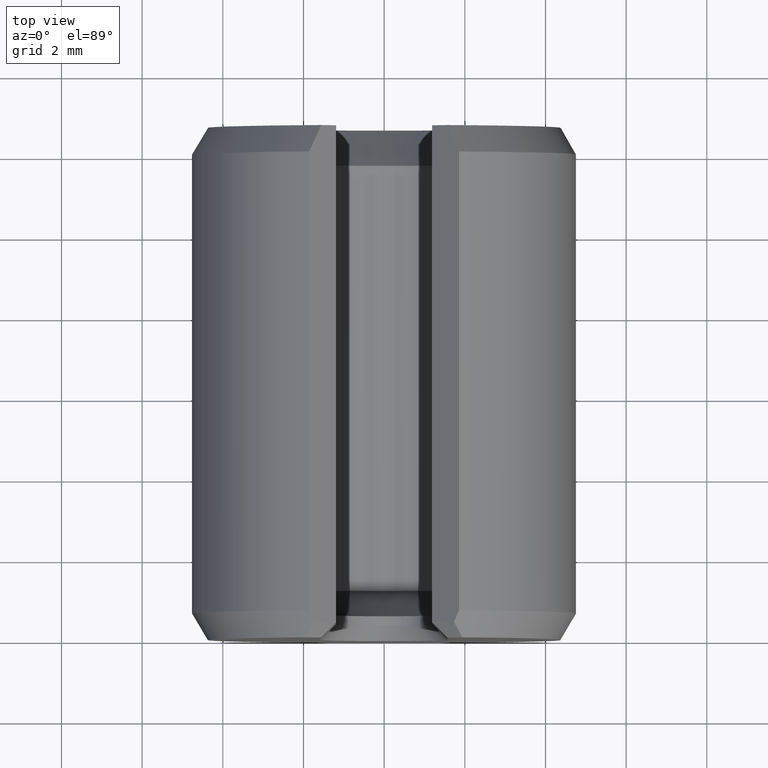
[diagram: clean part render]
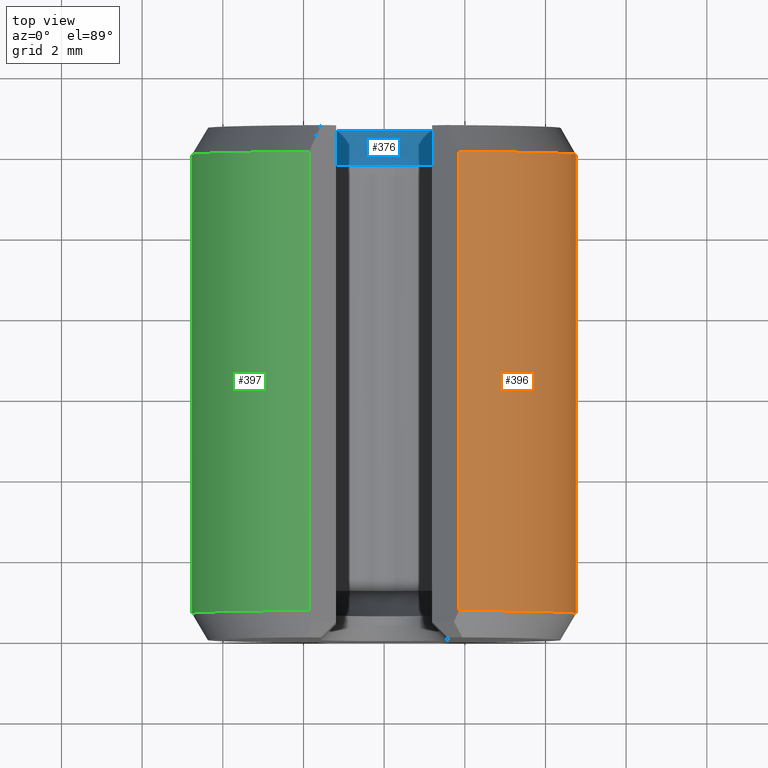
[diagram: same view with three faces highlighted in distinct colors, each labeled with its STEP entity id]
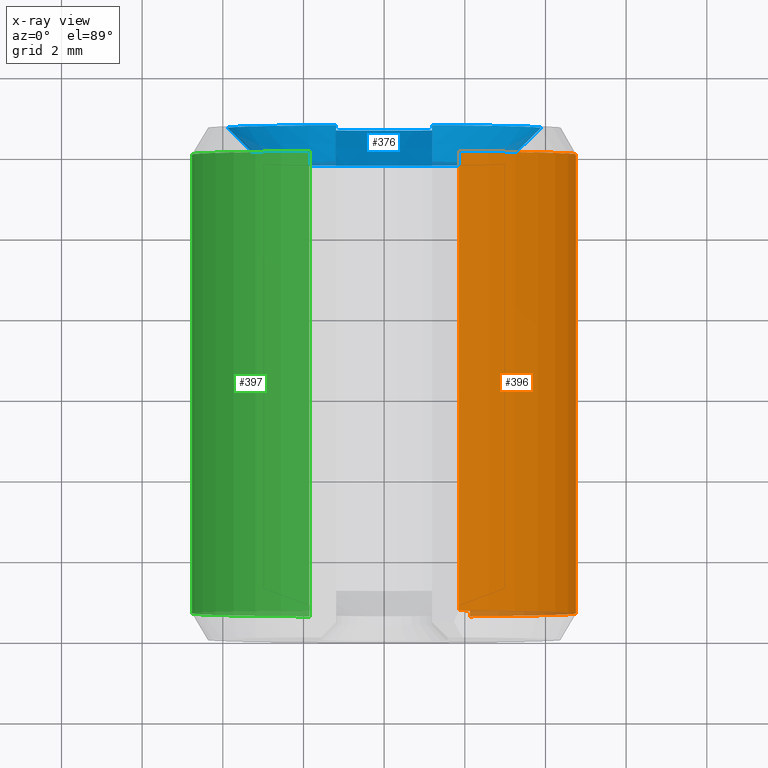
[diagram: x-ray of the same camera — body ghosted, the three highlighted faces saturated]
A machine part, top view with three faces highlighted in distinct colors.
The next image is the same camera in x-ray (body ghosted, the three faces saturated) — at least one of them is partly hidden behind the body in this view.
Their STEP definitions:

[orange] entity #396 — the highlighted cylindrical surface (partial cylindrical patch) has radius 4.7625 mm, axis along (-0, -1, -0).
#130 = CYLINDRICAL_SURFACE ( 'NONE', #511, 0.1875000000000000300 ) ;
#139 = FACE_OUTER_BOUND ( 'NONE', #709, .T. ) ;
#198 = DIRECTION ( 'NONE',  ( -0.0000000000000000000, -1.000000000000000000, -0.0000000000000000000 ) ) ;
#199 = CARTESIAN_POINT ( 'NONE',  ( 0.0000000000000000000, 0.5000000000000000000, 0.0000000000000000000 ) ) ;
#200 = DIRECTION ( 'NONE',  ( 0.0000000000000000000, 0.0000000000000000000, -1.000000000000000000 ) ) ;
#228 = DIRECTION ( 'NONE',  ( -0.0000000000000000000, 1.000000000000000000, -0.0000000000000000000 ) ) ;
#230 = DIRECTION ( 'NONE',  ( 0.0000000000000000000, 0.0000000000000000000, 1.000000000000000000 ) ) ;
#265 = AXIS2_PLACEMENT_3D ( 'NONE', #311, #228, #230 ) ;
#280 = CARTESIAN_POINT ( 'NONE',  ( 0.08375733241285908400, 0.4740192378864669400, -0.1677526729059237700 ) ) ;
#311 = CARTESIAN_POINT ( 'NONE',  ( 0.0000000000000000000, 0.02598076211353318400, 0.0000000000000000000 ) ) ;
#313 = DIRECTION ( 'NONE',  ( 0.0000000000000000000, 1.000000000000000000, 0.0000000000000000000 ) ) ;
#315 = DIRECTION ( 'NONE',  ( 0.0000000000000000000, 0.0000000000000000000, 1.000000000000000000 ) ) ;
#317 = DIRECTION ( 'NONE',  ( 0.0000000000000000000, -1.000000000000000000, 0.0000000000000000000 ) ) ;
#318 = DIRECTION ( 'NONE',  ( -0.0000000000000000000, -1.000000000000000000, -0.0000000000000000000 ) ) ;
#319 = CARTESIAN_POINT ( 'NONE',  ( 0.0000000000000000000, 0.4740192378864669900, 0.0000000000000000000 ) ) ;
#320 = CARTESIAN_POINT ( 'NONE',  ( 0.07302430484008527700, 0.5000000000000000000, 0.1726953991935578900 ) ) ;
#321 = CARTESIAN_POINT ( 'NONE',  ( 0.08375733241285894500, 0.2500000000000000000, -0.1677526729059236900 ) ) ;
#344 = CARTESIAN_POINT ( 'NONE',  ( 0.08375733241285894500, 0.02598076211353306600, -0.1677526729059236900 ) ) ;
#348 = CARTESIAN_POINT ( 'NONE',  ( 0.07302430484008525000, 0.4740192378864669900, 0.1726953991935578400 ) ) ;
#350 = CARTESIAN_POINT ( 'NONE',  ( 0.07302430484008527700, 0.02598076211353323200, 0.1726953991935578900 ) ) ;
#396 = ADVANCED_FACE ( 'NONE', ( #139 ), #130, .T. ) ;
#420 = VERTEX_POINT ( 'NONE', #350 ) ;
#422 = VERTEX_POINT ( 'NONE', #348 ) ;
#428 = VERTEX_POINT ( 'NONE', #344 ) ;
#444 = VERTEX_POINT ( 'NONE', #280 ) ;
#456 = ORIENTED_EDGE ( 'NONE', *, *, #512, .T. ) ;
#457 = ORIENTED_EDGE ( 'NONE', *, *, #519, .T. ) ;
#458 = ORIENTED_EDGE ( 'NONE', *, *, #506, .T. ) ;
#461 = ORIENTED_EDGE ( 'NONE', *, *, #513, .T. ) ;
#469 = VECTOR ( 'NONE', #318, 39.37007874015748100 ) ;
#471 = VECTOR ( 'NONE', #313, 39.37007874015748100 ) ;
#472 = LINE ( 'NONE', #320, #469 ) ;
#473 = CIRCLE ( 'NONE', #265, 0.1875000000000000300 ) ;
#474 = LINE ( 'NONE', #321, #471 ) ;
#475 = CIRCLE ( 'NONE', #500, 0.1875000000000000300 ) ;
#500 = AXIS2_PLACEMENT_3D ( 'NONE', #319, #317, #315 ) ;
#506 = EDGE_CURVE ( 'NONE', #444, #422, #475, .T. ) ;
#511 = AXIS2_PLACEMENT_3D ( 'NONE', #199, #198, #200 ) ;
#512 = EDGE_CURVE ( 'NONE', #428, #444, #474, .T. ) ;
#513 = EDGE_CURVE ( 'NONE', #422, #420, #472, .T. ) ;
#519 = EDGE_CURVE ( 'NONE', #420, #428, #473, .T. ) ;
#709 = EDGE_LOOP ( 'NONE', ( #461, #457, #456, #458 ) ) ;

[blue] entity #376 — the highlighted conical surface has half-angle 45 deg.
#19 = CARTESIAN_POINT ( 'NONE',  ( -0.04687500000000000700, 0.5000000000000000000, 0.1457582889941046700 ) ) ;
#78 = ORIENTED_EDGE ( 'NONE', *, *, #588, .F. ) ;
#81 = ORIENTED_EDGE ( 'NONE', *, *, #585, .F. ) ;
#82 = ORIENTED_EDGE ( 'NONE', *, *, #578, .F. ) ;
#96 = ORIENTED_EDGE ( 'NONE', *, *, #559, .F. ) ;
#123 = CIRCLE ( 'NONE', #254, 0.1531102362204726500 ) ;
#143 = CIRCLE ( 'NONE', #259, 0.1181102362204723100 ) ;
#254 = AXIS2_PLACEMENT_3D ( 'NONE', #328, #327, #326 ) ;
#259 = AXIS2_PLACEMENT_3D ( 'NONE', #625, #624, #623 ) ;
#271 = CARTESIAN_POINT ( 'NONE',  ( -0.04687500000000000700, 0.4649999999999997500, 0.1084101576193659500 ) ) ;
#277 = CARTESIAN_POINT ( 'NONE',  ( 0.04687500000000000700, 0.4649999999999997500, 0.1084101576193659500 ) ) ;
#285 = CARTESIAN_POINT ( 'NONE',  ( 0.04687500000000000700, 0.4765377943818933100, 0.1209803046409519800 ) ) ;
#310 = CARTESIAN_POINT ( 'NONE',  ( 0.04687500000000000700, 0.4649999999999997500, 0.1084101576193659500 ) ) ;
#326 = DIRECTION ( 'NONE',  ( 0.0000000000000000000, 0.0000000000000000000, 1.000000000000000000 ) ) ;
#327 = DIRECTION ( 'NONE',  ( -0.0000000000000000000, -1.000000000000000000, -0.0000000000000000000 ) ) ;
#328 = CARTESIAN_POINT ( 'NONE',  ( 0.0000000000000000000, 0.5000000000000000000, 0.0000000000000000000 ) ) ;
#338 = CARTESIAN_POINT ( 'NONE',  ( 0.04687500000000000700, 0.5000000000000000000, 0.1457582889941046700 ) ) ;
#351 = CARTESIAN_POINT ( 'NONE',  ( -0.04687500000000000700, 0.5000000000000000000, 0.1457582889941046700 ) ) ;
#363 = CARTESIAN_POINT ( 'NONE',  ( 0.0000000000000000000, 0.4649999999999997500, 0.0000000000000000000 ) ) ;
#367 = DIRECTION ( 'NONE',  ( 0.0000000000000000000, 0.0000000000000000000, 1.000000000000000000 ) ) ;
#373 = DIRECTION ( 'NONE',  ( 0.0000000000000000000, 1.000000000000000000, 0.0000000000000000000 ) ) ;
#376 = ADVANCED_FACE ( 'NONE', ( #723 ), #413, .F. ) ;
#413 = CONICAL_SURFACE ( 'NONE', #535, 0.1181102362204723100, 0.7853981633974498300 ) ;
#427 = VERTEX_POINT ( 'NONE', #351 ) ;
#432 = VERTEX_POINT ( 'NONE', #338 ) ;
#447 = VERTEX_POINT ( 'NONE', #277 ) ;
#452 = VERTEX_POINT ( 'NONE', #271 ) ;
#485 = B_SPLINE_CURVE_WITH_KNOTS ( 'NONE', 3,
 ( #616, #618, #613, #19 ),
 .UNSPECIFIED., .F., .F.,
 ( 4, 4 ),
 ( 0.0000000000000000000, 0.001300093713103374300 ),
 .UNSPECIFIED. ) ;
#486 = B_SPLINE_CURVE_WITH_KNOTS ( 'NONE', 3,
 ( #614, #615, #285, #310 ),
 .UNSPECIFIED., .F., .F.,
 ( 4, 4 ),
 ( 0.0000000000000000000, 0.001300093713103373900 ),
 .UNSPECIFIED. ) ;
#535 = AXIS2_PLACEMENT_3D ( 'NONE', #363, #373, #367 ) ;
#559 = EDGE_CURVE ( 'NONE', #427, #432, #123, .T. ) ;
#578 = EDGE_CURVE ( 'NONE', #447, #452, #143, .T. ) ;
#585 = EDGE_CURVE ( 'NONE', #452, #427, #485, .T. ) ;
#588 = EDGE_CURVE ( 'NONE', #432, #447, #486, .T. ) ;
#613 = CARTESIAN_POINT ( 'NONE',  ( -0.04687500000000000700, 0.4882355998823115200, 0.1334005006759097800 ) ) ;
#614 = CARTESIAN_POINT ( 'NONE',  ( 0.04687500000000000700, 0.5000000000000000000, 0.1457582889941046700 ) ) ;
#615 = CARTESIAN_POINT ( 'NONE',  ( 0.04687500000000000700, 0.4882355998823115800, 0.1334005006759097200 ) ) ;
#616 = CARTESIAN_POINT ( 'NONE',  ( -0.04687500000000000700, 0.4649999999999997500, 0.1084101576193659500 ) ) ;
#618 = CARTESIAN_POINT ( 'NONE',  ( -0.04687500000000000700, 0.4765377943818935300, 0.1209803046409517600 ) ) ;
#623 = DIRECTION ( 'NONE',  ( 0.0000000000000000000, 0.0000000000000000000, 1.000000000000000000 ) ) ;
#624 = DIRECTION ( 'NONE',  ( 0.0000000000000000000, 1.000000000000000000, 0.0000000000000000000 ) ) ;
#625 = CARTESIAN_POINT ( 'NONE',  ( 0.0000000000000000000, 0.4649999999999997500, 0.0000000000000000000 ) ) ;
#719 = EDGE_LOOP ( 'NONE', ( #78, #96, #81, #82 ) ) ;
#723 = FACE_OUTER_BOUND ( 'NONE', #719, .T. ) ;

[green] entity #397 — the highlighted cylindrical surface (partial cylindrical patch) has radius 4.7625 mm, axis along (-0, -1, -0).
#36 = DIRECTION ( 'NONE',  ( -0.0000000000000000000, 1.000000000000000000, -0.0000000000000000000 ) ) ;
#37 = CARTESIAN_POINT ( 'NONE',  ( 0.0000000000000000000, 0.02598076211353325300, 0.0000000000000000000 ) ) ;
#40 = CARTESIAN_POINT ( 'NONE',  ( -0.07302430484008531900, 0.5000000000000000000, 0.1726953991935578900 ) ) ;
#41 = DIRECTION ( 'NONE',  ( -0.0000000000000000000, -1.000000000000000000, -0.0000000000000000000 ) ) ;
#42 = DIRECTION ( 'NONE',  ( 0.0000000000000000000, 1.000000000000000000, 0.0000000000000000000 ) ) ;
#57 = ORIENTED_EDGE ( 'NONE', *, *, #554, .T. ) ;
#124 = CIRCLE ( 'NONE', #255, 0.1875000000000000300 ) ;
#133 = CYLINDRICAL_SURFACE ( 'NONE', #510, 0.1875000000000000300 ) ;
#135 = FACE_OUTER_BOUND ( 'NONE', #708, .T. ) ;
#195 = DIRECTION ( 'NONE',  ( -0.0000000000000000000, -1.000000000000000000, -0.0000000000000000000 ) ) ;
#196 = CARTESIAN_POINT ( 'NONE',  ( 0.0000000000000000000, 0.5000000000000000000, 0.0000000000000000000 ) ) ;
#197 = DIRECTION ( 'NONE',  ( 0.0000000000000000000, 0.0000000000000000000, -1.000000000000000000 ) ) ;
#219 = CARTESIAN_POINT ( 'NONE',  ( -0.07291662851555622000, 0.2500000000000000000, -0.1727408906018617600 ) ) ;
#255 = AXIS2_PLACEMENT_3D ( 'NONE', #742, #741, #744 ) ;
#263 = AXIS2_PLACEMENT_3D ( 'NONE', #37, #36, #745 ) ;
#341 = CARTESIAN_POINT ( 'NONE',  ( -0.07302430484008529100, 0.4740192378864669900, 0.1726953991935578400 ) ) ;
#342 = CARTESIAN_POINT ( 'NONE',  ( -0.07302430484008531900, 0.02598076211353332600, 0.1726953991935578900 ) ) ;
#346 = CARTESIAN_POINT ( 'NONE',  ( -0.07291662851555622000, 0.02598076211353322900, -0.1727408906018617600 ) ) ;
#353 = CARTESIAN_POINT ( 'NONE',  ( -0.07291662851555635900, 0.4740192378864669900, -0.1727408906018617100 ) ) ;
#397 = ADVANCED_FACE ( 'NONE', ( #135 ), #133, .T. ) ;
#424 = VERTEX_POINT ( 'NONE', #346 ) ;
#426 = VERTEX_POINT ( 'NONE', #353 ) ;
#429 = VERTEX_POINT ( 'NONE', #342 ) ;
#430 = VERTEX_POINT ( 'NONE', #341 ) ;
#464 = ORIENTED_EDGE ( 'NONE', *, *, #556, .T. ) ;
#465 = ORIENTED_EDGE ( 'NONE', *, *, #557, .T. ) ;
#510 = AXIS2_PLACEMENT_3D ( 'NONE', #196, #195, #197 ) ;
#554 = EDGE_CURVE ( 'NONE', #426, #424, #602, .T. ) ;
#555 = EDGE_CURVE ( 'NONE', #424, #429, #605, .T. ) ;
#556 = EDGE_CURVE ( 'NONE', #429, #430, #604, .T. ) ;
#557 = EDGE_CURVE ( 'NONE', #430, #426, #124, .T. ) ;
#597 = VECTOR ( 'NONE', #42, 39.37007874015748100 ) ;
#602 = LINE ( 'NONE', #219, #603 ) ;
#603 = VECTOR ( 'NONE', #41, 39.37007874015748100 ) ;
#604 = LINE ( 'NONE', #40, #597 ) ;
#605 = CIRCLE ( 'NONE', #263, 0.1875000000000000300 ) ;
#688 = ORIENTED_EDGE ( 'NONE', *, *, #555, .T. ) ;
#708 = EDGE_LOOP ( 'NONE', ( #57, #688, #464, #465 ) ) ;
#741 = DIRECTION ( 'NONE',  ( 0.0000000000000000000, -1.000000000000000000, 0.0000000000000000000 ) ) ;
#742 = CARTESIAN_POINT ( 'NONE',  ( 0.0000000000000000000, 0.4740192378864669900, 0.0000000000000000000 ) ) ;
#744 = DIRECTION ( 'NONE',  ( 0.0000000000000000000, 0.0000000000000000000, 1.000000000000000000 ) ) ;
#745 = DIRECTION ( 'NONE',  ( 0.0000000000000000000, 0.0000000000000000000, 1.000000000000000000 ) ) ;